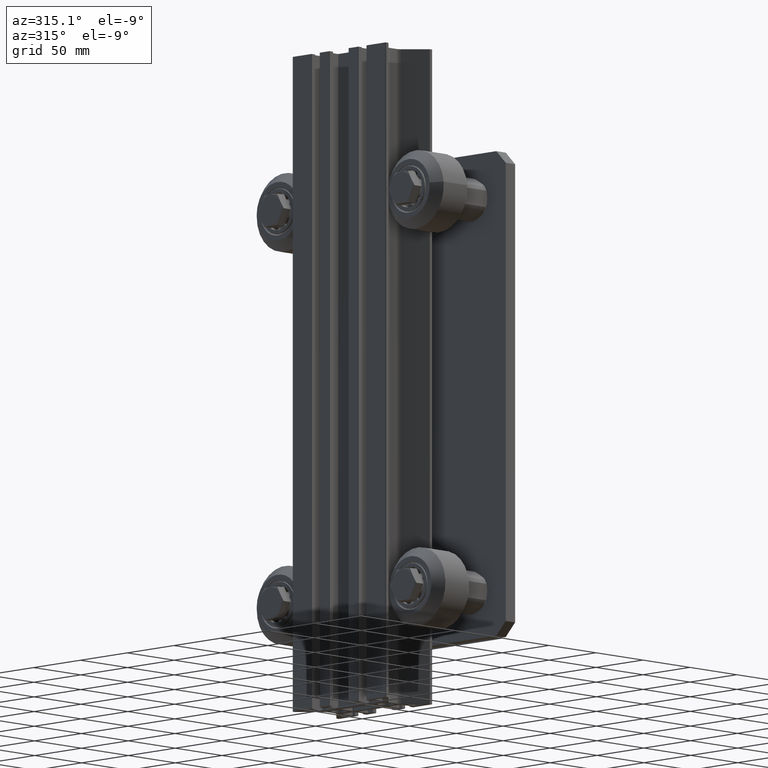
[diagram: clean part render]
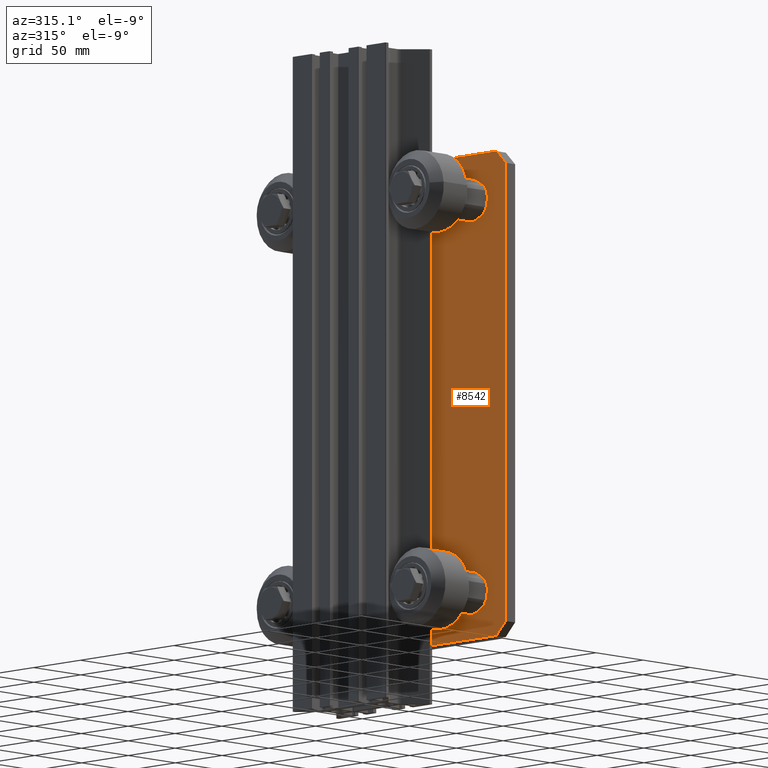
[diagram: same view with one face highlighted and labeled with its STEP entity id]
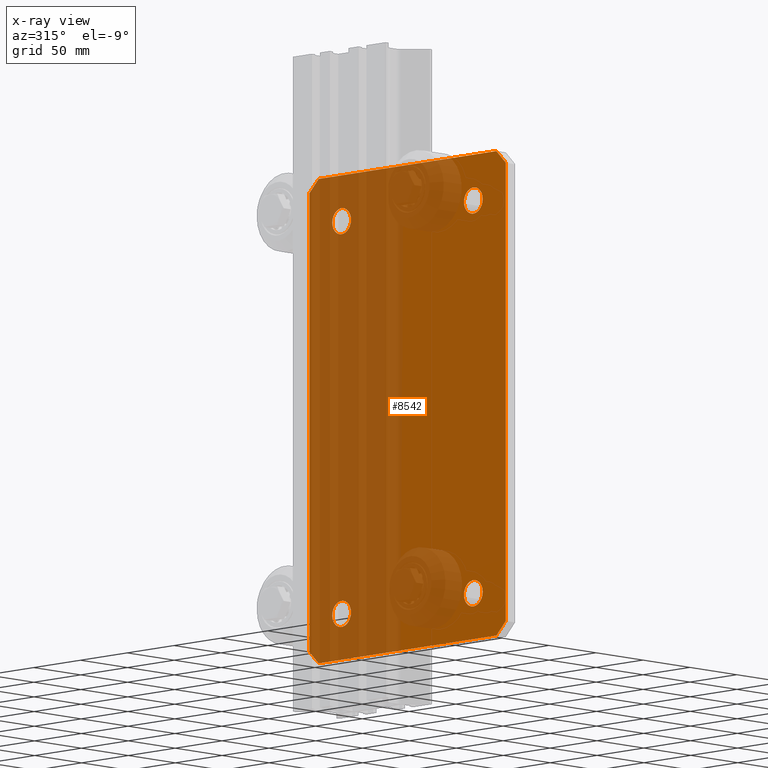
[diagram: x-ray of the same camera — body ghosted, the highlighted face saturated]
A machine part, auxiliary view. The second image highlights one B-rep face of the part: STEP entity #8542.
The next image is the same camera in x-ray: the body ghosted, the highlighted face saturated — about 55% of this face is hidden behind the body in this view.
In plain terms, the highlighted planar face has unit normal (1, 0, 0).
Its self-contained STEP definition (entity closure, byte-faithful):
#565=FACE_BOUND('',#1265,.T.);
#566=FACE_BOUND('',#1266,.T.);
#567=FACE_BOUND('',#1267,.T.);
#568=FACE_BOUND('',#1268,.T.);
#784=FACE_OUTER_BOUND('',#1264,.T.);
#1264=EDGE_LOOP('',(#6464,#6465,#6466,#6467,#6468,#6469,#6470,#6471));
#1265=EDGE_LOOP('',(#6472));
#1266=EDGE_LOOP('',(#6473));
#1267=EDGE_LOOP('',(#6474));
#1268=EDGE_LOOP('',(#6475));
#1745=CIRCLE('',#9484,10.);
#1746=CIRCLE('',#9485,10.);
#1747=CIRCLE('',#9486,10.);
#1748=CIRCLE('',#9487,10.);
#2338=LINE('',#13889,#2972);
#2340=LINE('',#13893,#2974);
#2343=LINE('',#13899,#2977);
#2344=LINE('',#13901,#2978);
#2345=LINE('',#13903,#2979);
#2346=LINE('',#13905,#2980);
#2347=LINE('',#13907,#2981);
#2348=LINE('',#13908,#2982);
#2972=VECTOR('',#11075,10.);
#2974=VECTOR('',#11079,10.);
#2977=VECTOR('',#11084,10.);
#2978=VECTOR('',#11085,10.);
#2979=VECTOR('',#11086,10.);
#2980=VECTOR('',#11087,10.);
#2981=VECTOR('',#11088,10.);
#2982=VECTOR('',#11089,10.);
#3621=VERTEX_POINT('',#13886);
#3622=VERTEX_POINT('',#13888);
#3623=VERTEX_POINT('',#13892);
#3625=VERTEX_POINT('',#13898);
#3626=VERTEX_POINT('',#13900);
#3627=VERTEX_POINT('',#13902);
#3628=VERTEX_POINT('',#13904);
#3629=VERTEX_POINT('',#13906);
#3630=VERTEX_POINT('',#13909);
#3631=VERTEX_POINT('',#13911);
#3632=VERTEX_POINT('',#13913);
#3633=VERTEX_POINT('',#13915);
#4660=EDGE_CURVE('',#3621,#3622,#2338,.T.);
#4662=EDGE_CURVE('',#3623,#3622,#2340,.T.);
#4665=EDGE_CURVE('',#3621,#3625,#2343,.T.);
#4666=EDGE_CURVE('',#3626,#3625,#2344,.T.);
#4667=EDGE_CURVE('',#3626,#3627,#2345,.T.);
#4668=EDGE_CURVE('',#3628,#3627,#2346,.T.);
#4669=EDGE_CURVE('',#3628,#3629,#2347,.T.);
#4670=EDGE_CURVE('',#3623,#3629,#2348,.T.);
#4671=EDGE_CURVE('',#3630,#3630,#1745,.T.);
#4672=EDGE_CURVE('',#3631,#3631,#1746,.T.);
#4673=EDGE_CURVE('',#3632,#3632,#1747,.T.);
#4674=EDGE_CURVE('',#3633,#3633,#1748,.T.);
#6464=ORIENTED_EDGE('',*,*,#4660,.F.);
#6465=ORIENTED_EDGE('',*,*,#4665,.T.);
#6466=ORIENTED_EDGE('',*,*,#4666,.F.);
#6467=ORIENTED_EDGE('',*,*,#4667,.T.);
#6468=ORIENTED_EDGE('',*,*,#4668,.F.);
#6469=ORIENTED_EDGE('',*,*,#4669,.T.);
#6470=ORIENTED_EDGE('',*,*,#4670,.F.);
#6471=ORIENTED_EDGE('',*,*,#4662,.T.);
#6472=ORIENTED_EDGE('',*,*,#4671,.T.);
#6473=ORIENTED_EDGE('',*,*,#4672,.T.);
#6474=ORIENTED_EDGE('',*,*,#4673,.T.);
#6475=ORIENTED_EDGE('',*,*,#4674,.T.);
#8158=PLANE('',#9483);
#8542=ADVANCED_FACE('',(#784,#565,#566,#567,#568),#8158,.F.);
#9483=AXIS2_PLACEMENT_3D('',#13897,#11082,#11083);
#9484=AXIS2_PLACEMENT_3D('',#13910,#11090,#11091);
#9485=AXIS2_PLACEMENT_3D('',#13912,#11092,#11093);
#9486=AXIS2_PLACEMENT_3D('',#13914,#11094,#11095);
#9487=AXIS2_PLACEMENT_3D('',#13916,#11096,#11097);
#11075=DIRECTION('',(-0.707106781186548,-0.707106781186548,0.));
#11079=DIRECTION('',(0.,1.,0.));
#11082=DIRECTION('center_axis',(0.,0.,1.));
#11083=DIRECTION('ref_axis',(1.,0.,0.));
#11084=DIRECTION('',(1.,0.,0.));
#11085=DIRECTION('',(-0.707106781186548,0.707106781186548,0.));
#11086=DIRECTION('',(0.,-1.,0.));
#11087=DIRECTION('',(0.707106781186548,0.707106781186548,0.));
#11088=DIRECTION('',(-1.,0.,0.));
#11089=DIRECTION('',(0.707106781186548,-0.707106781186548,0.));
#11090=DIRECTION('center_axis',(0.,0.,1.));
#11091=DIRECTION('ref_axis',(1.,0.,0.));
#11092=DIRECTION('center_axis',(0.,0.,1.));
#11093=DIRECTION('ref_axis',(1.,0.,0.));
#11094=DIRECTION('center_axis',(0.,0.,1.));
#11095=DIRECTION('ref_axis',(1.,0.,0.));
#11096=DIRECTION('center_axis',(0.,0.,1.));
#11097=DIRECTION('ref_axis',(1.,0.,0.));
#13886=CARTESIAN_POINT('',(-95.,185.,0.));
#13888=CARTESIAN_POINT('',(-105.,175.,0.));
#13889=CARTESIAN_POINT('',(-120.,160.,0.));
#13892=CARTESIAN_POINT('',(-105.,-175.,0.));
#13893=CARTESIAN_POINT('',(-105.,-185.,0.));
#13897=CARTESIAN_POINT('Origin',(0.,0.,0.));
#13898=CARTESIAN_POINT('',(95.,185.,0.));
#13899=CARTESIAN_POINT('',(-105.,185.,0.));
#13900=CARTESIAN_POINT('',(105.,175.,0.));
#13901=CARTESIAN_POINT('',(120.,160.,0.));
#13902=CARTESIAN_POINT('',(105.,-175.,0.));
#13903=CARTESIAN_POINT('',(105.,185.,0.));
#13904=CARTESIAN_POINT('',(95.,-185.,0.));
#13905=CARTESIAN_POINT('',(120.,-160.,0.));
#13906=CARTESIAN_POINT('',(-95.,-185.,0.));
#13907=CARTESIAN_POINT('',(105.,-185.,0.));
#13908=CARTESIAN_POINT('',(-120.,-160.,0.));
#13909=CARTESIAN_POINT('',(-80.4,-150.,0.));
#13910=CARTESIAN_POINT('Origin',(-70.4,-150.,0.));
#13911=CARTESIAN_POINT('',(-80.4,150.,0.));
#13912=CARTESIAN_POINT('Origin',(-70.4,150.,0.));
#13913=CARTESIAN_POINT('',(60.4,150.,0.));
#13914=CARTESIAN_POINT('Origin',(70.4,150.,0.));
#13915=CARTESIAN_POINT('',(60.4,-150.,0.));
#13916=CARTESIAN_POINT('Origin',(70.4,-150.,0.));